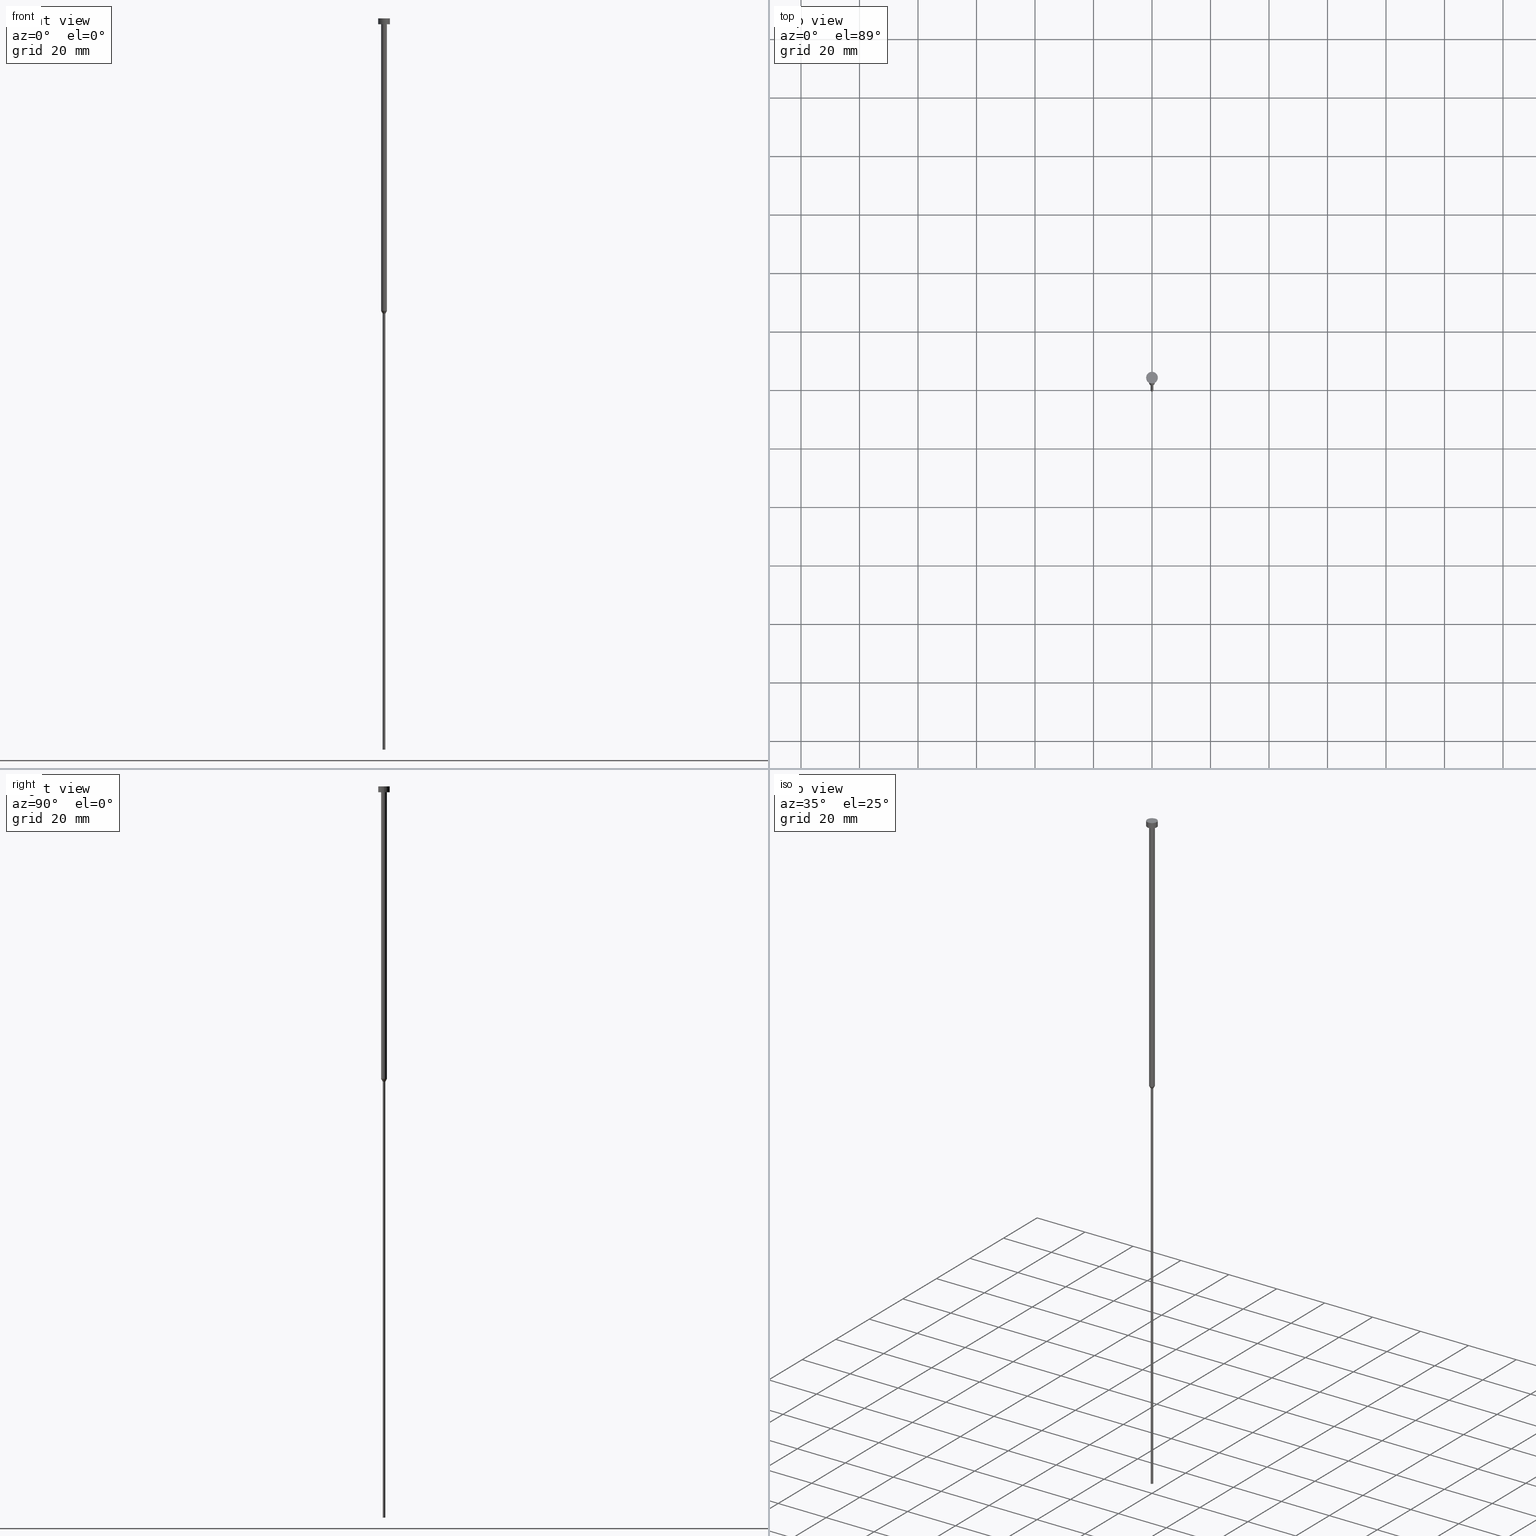
[diagram: canonical four-view strip — front | top / right | iso, engineering-drawing reading convention]
A machine part, canonical four-view strip (front | top / right | iso — engineering-drawing reading convention). The complete STEP part file that produces these views, byte-faithful:
ISO-10303-21;
HEADER;
FILE_DESCRIPTION (( 'STEP AP203' ),
    '1' );
FILE_NAME ('e36c.STEP',
    '2023-02-13T10:58:36',
    ( '' ),
    ( '' ),
    'SwSTEP 2.0',
    'SolidWorks 2019',
    '' );
FILE_SCHEMA (( 'CONFIG_CONTROL_DESIGN' ));
ENDSEC;

DATA;
#1 = SECURITY_CLASSIFICATION_LEVEL ( 'unclassified' ) ;
#2 = EDGE_CURVE ( 'NONE', #333, #186, #224, .T. ) ;
#3 = DIRECTION ( 'NONE',  ( -0.000000000000000000, -0.000000000000000000, 1.000000000000000000 ) ) ;
#4 = CC_DESIGN_APPROVAL ( #332, ( #63 ) ) ;
#5 = FACE_OUTER_BOUND ( 'NONE', #132, .T. ) ;
#6 = CARTESIAN_POINT ( 'NONE',  ( 0.000000000000000000, 0.000000000000000000, -100.0000000000000000 ) ) ;
#7 = UNCERTAINTY_MEASURE_WITH_UNIT (LENGTH_MEASURE( 1.000000000000000082E-05 ), #19, 'distance_accuracy_value', 'NONE');
#8 = CARTESIAN_POINT ( 'NONE',  ( 0.000000000000000000, 0.000000000000000000, 0.000000000000000000 ) ) ;
#9 = EDGE_CURVE ( 'NONE', #50, #158, #192, .T. ) ;
#10 = COORDINATED_UNIVERSAL_TIME_OFFSET ( 1, 0, .AHEAD. ) ;
#11 = AXIS2_PLACEMENT_3D ( 'NONE', #71, #307, #289 ) ;
#12 = CIRCLE ( 'NONE', #309, 1.000000000000003109 ) ;
#13 = FACE_OUTER_BOUND ( 'NONE', #274, .T. ) ;
#14 = DIRECTION ( 'NONE',  ( 1.000000000000000000, 0.000000000000000000, 0.000000000000000000 ) ) ;
#15 = ADVANCED_FACE ( 'NONE', ( #87 ), #168, .T. ) ;
#16 = CARTESIAN_POINT ( 'NONE',  ( 2.000000000000000000, 0.000000000000000000, 0.000000000000000000 ) ) ;
#17 = CARTESIAN_POINT ( 'NONE',  ( -1.000000000000003553, 1.224646799147357398E-16, -2.000000000000000444 ) ) ;
#18 = MANIFOLD_SOLID_BREP ( 'Rotovat1', #217 ) ;
#19 =( LENGTH_UNIT ( ) NAMED_UNIT ( * ) SI_UNIT ( .MILLI., .METRE. ) );
#20 = DATE_AND_TIME ( #96, #198 ) ;
#21 = CC_DESIGN_SECURITY_CLASSIFICATION ( #63, ( #26 ) ) ;
#22 = DIRECTION ( 'NONE',  ( 1.000000000000000000, 0.000000000000000000, 0.000000000000000000 ) ) ;
#23 = EDGE_LOOP ( 'NONE', ( #325, #211 ) ) ;
#24 = APPROVAL_STATUS ( 'not_yet_approved' ) ;
#25 = ORIENTED_EDGE ( 'NONE', *, *, #9, .F. ) ;
#26 = PRODUCT_DEFINITION_FORMATION_WITH_SPECIFIED_SOURCE ( 'LIBOVOLN�', '', #280, .NOT_KNOWN. ) ;
#27 = ORIENTED_EDGE ( 'NONE', *, *, #129, .F. ) ;
#28 = DIRECTION ( 'NONE',  ( 1.000000000000000000, 0.000000000000000000, 0.000000000000000000 ) ) ;
#29 = EDGE_LOOP ( 'NONE', ( #184, #131, #276, #79 ) ) ;
#30 = FACE_BOUND ( 'NONE', #326, .T. ) ;
#31 = PERSON_AND_ORGANIZATION ( #77, #322 ) ;
#32 = EDGE_CURVE ( 'NONE', #158, #83, #282, .T. ) ;
#33 = PLANE ( 'NONE',  #267 ) ;
#34 = CIRCLE ( 'NONE', #195, 2.000000000000000000 ) ;
#35 = CARTESIAN_POINT ( 'NONE',  ( 0.000000000000000000, 0.000000000000000000, -2.000000000000000444 ) ) ;
#36 = APPROVAL_PERSON_ORGANIZATION ( #236, #191, #240 ) ;
#37 = VECTOR ( 'NONE', #122, 1000.000000000000000 ) ;
#38 = FACE_OUTER_BOUND ( 'NONE', #78, .T. ) ;
#39 = CARTESIAN_POINT ( 'NONE',  ( 0.000000000000000000, 0.000000000000000000, 0.000000000000000000 ) ) ;
#40 = EDGE_CURVE ( 'NONE', #128, #186, #60, .T. ) ;
#41 = DIRECTION ( 'NONE',  ( -0.000000000000000000, -0.000000000000000000, 1.000000000000000000 ) ) ;
#42 = FACE_OUTER_BOUND ( 'NONE', #23, .T. ) ;
#43 = DIRECTION ( 'NONE',  ( 0.5000000000000067724, 0.000000000000000000, 0.8660254037844345998 ) ) ;
#44 = DATE_AND_TIME ( #285, #291 ) ;
#45 = CC_DESIGN_DATE_AND_TIME_ASSIGNMENT ( #155, #272, ( #63 ) ) ;
#46 = DIRECTION ( 'NONE',  ( 0.000000000000000000, 0.000000000000000000, -1.000000000000000000 ) ) ;
#47 =( NAMED_UNIT ( * ) PLANE_ANGLE_UNIT ( ) SI_UNIT ( $, .RADIAN. ) );
#48 = DESIGN_CONTEXT ( 'detailed design', #277, 'design' ) ;
#49 =( NAMED_UNIT ( * ) SI_UNIT ( $, .STERADIAN. ) SOLID_ANGLE_UNIT ( ) );
#50 = VERTEX_POINT ( 'NONE', #136 ) ;
#51 = ORIENTED_EDGE ( 'NONE', *, *, #9, .T. ) ;
#52 = DIRECTION ( 'NONE',  ( -0.000000000000000000, -0.000000000000000000, 1.000000000000000000 ) ) ;
#53 = PERSON_AND_ORGANIZATION_ROLE ( 'classification_officer' ) ;
#54 = DIRECTION ( 'NONE',  ( 0.000000000000000000, 0.000000000000000000, -1.000000000000000000 ) ) ;
#55 = VECTOR ( 'NONE', #137, 1000.000000000000000 ) ;
#56 = VERTEX_POINT ( 'NONE', #254 ) ;
#57 = CARTESIAN_POINT ( 'NONE',  ( 0.000000000000000000, 0.000000000000000000, -250.0000000000000000 ) ) ;
#58 = EDGE_CURVE ( 'NONE', #186, #128, #108, .T. ) ;
#59 = EDGE_LOOP ( 'NONE', ( #215, #126, #156, #251 ) ) ;
#60 = CIRCLE ( 'NONE', #185, 0.4500000000000000111 ) ;
#61 = DIRECTION ( 'NONE',  ( -0.000000000000000000, -0.000000000000000000, 1.000000000000000000 ) ) ;
#62 = CARTESIAN_POINT ( 'NONE',  ( -2.000000000000000000, 2.449293598294706414E-16, 0.000000000000000000 ) ) ;
#63 = SECURITY_CLASSIFICATION ( '', '', #1 ) ;
#64 = COORDINATED_UNIVERSAL_TIME_OFFSET ( 1, 0, .AHEAD. ) ;
#65 = AXIS2_PLACEMENT_3D ( 'NONE', #281, #69, #261 ) ;
#66 = AXIS2_PLACEMENT_3D ( 'NONE', #161, #350, #28 ) ;
#67 = EDGE_CURVE ( 'NONE', #186, #174, #341, .T. ) ;
#68 = DIRECTION ( 'NONE',  ( 1.000000000000000000, 0.000000000000000000, 0.000000000000000000 ) ) ;
#69 = DIRECTION ( 'NONE',  ( -0.000000000000000000, -0.000000000000000000, 1.000000000000000000 ) ) ;
#70 = ORIENTED_EDGE ( 'NONE', *, *, #189, .T. ) ;
#71 = CARTESIAN_POINT ( 'NONE',  ( 0.000000000000000000, 0.000000000000000000, 0.000000000000000000 ) ) ;
#72 = FACE_OUTER_BOUND ( 'NONE', #208, .T. ) ;
#73 = APPROVAL_PERSON_ORGANIZATION ( #75, #332, #100 ) ;
#74 = DIRECTION ( 'NONE',  ( -0.000000000000000000, -0.000000000000000000, 1.000000000000000000 ) ) ;
#75 = PERSON_AND_ORGANIZATION ( #77, #322 ) ;
#76 = DIRECTION ( 'NONE',  ( 1.000000000000000000, 0.000000000000000000, 0.000000000000000000 ) ) ;
#77 = PERSON ( 'NEUR�EN�', 'NEUR�EN�', 'NEUR�EN�', ('NEUR�EN�'), ('NEUR�EN�'), ('NEUR�EN�') ) ;
#78 = EDGE_LOOP ( 'NONE', ( #271, #246, #209, #25 ) ) ;
#79 = ORIENTED_EDGE ( 'NONE', *, *, #189, .F. ) ;
#80 = ORIENTED_EDGE ( 'NONE', *, *, #129, .T. ) ;
#81 = ADVANCED_FACE ( 'NONE', ( #199 ), #175, .T. ) ;
#82 = AXIS2_PLACEMENT_3D ( 'NONE', #308, #95, #203 ) ;
#83 = VERTEX_POINT ( 'NONE', #17 ) ;
#84 = CARTESIAN_POINT ( 'NONE',  ( 0.000000000000000000, 0.000000000000000000, -100.9526279441628702 ) ) ;
#85 = AXIS2_PLACEMENT_3D ( 'NONE', #113, #231, #336 ) ;
#86 = DIRECTION ( 'NONE',  ( -0.000000000000000000, -0.000000000000000000, 1.000000000000000000 ) ) ;
#87 = FACE_OUTER_BOUND ( 'NONE', #302, .T. ) ;
#88 = CARTESIAN_POINT ( 'NONE',  ( 2.000000000000000000, 0.000000000000000000, -2.000000000000000444 ) ) ;
#89 = DIRECTION ( 'NONE',  ( 1.000000000000000000, 0.000000000000000000, 0.000000000000000000 ) ) ;
#90 = CALENDAR_DATE ( 2023, 13, 2 ) ;
#91 = VECTOR ( 'NONE', #206, 1000.000000000000114 ) ;
#92 = APPROVAL_PERSON_ORGANIZATION ( #202, #354, #227 ) ;
#93 = FACE_OUTER_BOUND ( 'NONE', #328, .T. ) ;
#94 = PLANE ( 'NONE',  #147 ) ;
#95 = DIRECTION ( 'NONE',  ( -0.000000000000000000, -0.000000000000000000, 1.000000000000000000 ) ) ;
#96 = CALENDAR_DATE ( 2023, 13, 2 ) ;
#97 = EDGE_CURVE ( 'NONE', #233, #128, #173, .T. ) ;
#98 = ORIENTED_EDGE ( 'NONE', *, *, #67, .F. ) ;
#99 = ORIENTED_EDGE ( 'NONE', *, *, #97, .T. ) ;
#100 = APPROVAL_ROLE ( '' ) ;
#101 = ORIENTED_EDGE ( 'NONE', *, *, #58, .F. ) ;
#102 = EDGE_CURVE ( 'NONE', #56, #219, #34, .T. ) ;
#103 = ORIENTED_EDGE ( 'NONE', *, *, #97, .F. ) ;
#104 = LINE ( 'NONE', #62, #355 ) ;
#105 = CIRCLE ( 'NONE', #335, 2.000000000000000000 ) ;
#106 = VECTOR ( 'NONE', #118, 1000.000000000000000 ) ;
#107 = ADVANCED_FACE ( 'NONE', ( #150 ), #260, .T. ) ;
#108 = CIRCLE ( 'NONE', #65, 0.4500000000000000111 ) ;
#109 = AXIS2_PLACEMENT_3D ( 'NONE', #238, #146, #111 ) ;
#110 = CC_DESIGN_PERSON_AND_ORGANIZATION_ASSIGNMENT ( #278, #221, ( #26 ) ) ;
#111 = DIRECTION ( 'NONE',  ( 1.000000000000000000, 0.000000000000000000, 0.000000000000000000 ) ) ;
#112 = CYLINDRICAL_SURFACE ( 'NONE', #232, 1.000000000000003331 ) ;
#113 = CARTESIAN_POINT ( 'NONE',  ( 0.000000000000000000, 0.000000000000000000, 0.000000000000000000 ) ) ;
#114 = CARTESIAN_POINT ( 'NONE',  ( 0.000000000000000000, 0.000000000000000000, 0.000000000000000000 ) ) ;
#115 = APPROVAL_DATE_TIME ( #266, #354 ) ;
#116 = CYLINDRICAL_SURFACE ( 'NONE', #317, 0.4500000000000000111 ) ;
#117 = ORIENTED_EDGE ( 'NONE', *, *, #314, .T. ) ;
#118 = DIRECTION ( 'NONE',  ( -0.000000000000000000, -0.000000000000000000, 1.000000000000000000 ) ) ;
#119 = DIRECTION ( 'NONE',  ( -0.000000000000000000, -0.000000000000000000, 1.000000000000000000 ) ) ;
#120 = COORDINATED_UNIVERSAL_TIME_OFFSET ( 1, 0, .AHEAD. ) ;
#121 = AXIS2_PLACEMENT_3D ( 'NONE', #196, #134, #252 ) ;
#122 = DIRECTION ( 'NONE',  ( -0.000000000000000000, -0.000000000000000000, 1.000000000000000000 ) ) ;
#123 = AXIS2_PLACEMENT_3D ( 'NONE', #6, #52, #188 ) ;
#124 = EDGE_CURVE ( 'NONE', #233, #333, #320, .T. ) ;
#125 = ORIENTED_EDGE ( 'NONE', *, *, #58, .T. ) ;
#126 = ORIENTED_EDGE ( 'NONE', *, *, #338, .T. ) ;
#127 = CARTESIAN_POINT ( 'NONE',  ( 0.000000000000000000, 0.000000000000000000, -2.449293598294705921E-16 ) ) ;
#128 = VERTEX_POINT ( 'NONE', #157 ) ;
#129 = EDGE_CURVE ( 'NONE', #333, #233, #220, .T. ) ;
#130 = COORDINATED_UNIVERSAL_TIME_OFFSET ( 1, 0, .AHEAD. ) ;
#131 = ORIENTED_EDGE ( 'NONE', *, *, #67, .T. ) ;
#132 = EDGE_LOOP ( 'NONE', ( #222, #321, #51, #187 ) ) ;
#133 = PERSON_AND_ORGANIZATION_ROLE ( 'creator' ) ;
#134 = DIRECTION ( 'NONE',  ( -0.000000000000000000, -0.000000000000000000, 1.000000000000000000 ) ) ;
#135 = DIRECTION ( 'NONE',  ( 1.000000000000000000, 0.000000000000000000, 0.000000000000000000 ) ) ;
#136 = CARTESIAN_POINT ( 'NONE',  ( 1.000000000000003109, 0.000000000000000000, -100.0000000000000000 ) ) ;
#137 = DIRECTION ( 'NONE',  ( -0.000000000000000000, -0.000000000000000000, 1.000000000000000000 ) ) ;
#138 = PRODUCT_DEFINITION_SHAPE ( 'NONE', 'NONE',  #294 ) ;
#139 = CYLINDRICAL_SURFACE ( 'NONE', #243, 1.000000000000003331 ) ;
#140 = CIRCLE ( 'NONE', #109, 1.000000000000003553 ) ;
#141 = DIRECTION ( 'NONE',  ( -0.000000000000000000, -0.000000000000000000, 1.000000000000000000 ) ) ;
#142 = PERSON_AND_ORGANIZATION ( #77, #322 ) ;
#143 = APPLICATION_PROTOCOL_DEFINITION ( 'international standard', 'config_control_design', 1994, #277 ) ;
#144 = CARTESIAN_POINT ( 'NONE',  ( -1.000000000000003331, 1.224646799147357151E-16, 0.000000000000000000 ) ) ;
#145 = APPLICATION_PROTOCOL_DEFINITION ( 'international standard', 'config_control_design', 1994, #235 ) ;
#146 = DIRECTION ( 'NONE',  ( -0.000000000000000000, -0.000000000000000000, 1.000000000000000000 ) ) ;
#147 = AXIS2_PLACEMENT_3D ( 'NONE', #263, #259, #265 ) ;
#148 = DATE_TIME_ROLE ( 'creation_date' ) ;
#149 = DIRECTION ( 'NONE',  ( 1.000000000000000000, 0.000000000000000000, 0.000000000000000000 ) ) ;
#150 = FACE_OUTER_BOUND ( 'NONE', #29, .T. ) ;
#151 = CALENDAR_DATE ( 2023, 13, 2 ) ;
#152 = DIRECTION ( 'NONE',  ( -0.000000000000000000, -0.000000000000000000, 1.000000000000000000 ) ) ;
#153 = LOCAL_TIME ( 11, 58, 36.00000000000000000, #275 ) ;
#154 = ORIENTED_EDGE ( 'NONE', *, *, #228, .F. ) ;
#155 = DATE_AND_TIME ( #151, #153 ) ;
#156 = ORIENTED_EDGE ( 'NONE', *, *, #172, .F. ) ;
#157 = CARTESIAN_POINT ( 'NONE',  ( 0.4500000000000000111, 0.000000000000000000, -100.9526279441628702 ) ) ;
#158 = VERTEX_POINT ( 'NONE', #212 ) ;
#159 = CIRCLE ( 'NONE', #82, 1.000000000000003109 ) ;
#160 = ORIENTED_EDGE ( 'NONE', *, *, #205, .T. ) ;
#161 = CARTESIAN_POINT ( 'NONE',  ( 0.000000000000000000, 0.000000000000000000, -250.0000000000000000 ) ) ;
#162 = APPROVAL_DATE_TIME ( #213, #191 ) ;
#163 = CC_DESIGN_DATE_AND_TIME_ASSIGNMENT ( #44, #148, ( #294 ) ) ;
#164 = DIRECTION ( 'NONE',  ( 1.000000000000000000, 0.000000000000000000, 0.000000000000000000 ) ) ;
#165 = CIRCLE ( 'NONE', #273, 2.000000000000000000 ) ;
#166 = ADVANCED_FACE ( 'NONE', ( #30, #42 ), #33, .T. ) ;
#167 = CARTESIAN_POINT ( 'NONE',  ( 1.000000000000003109, 0.000000000000000000, -100.0000000000000000 ) ) ;
#168 = CYLINDRICAL_SURFACE ( 'NONE', #296, 2.000000000000000000 ) ;
#169 = AXIS2_PLACEMENT_3D ( 'NONE', #57, #348, #182 ) ;
#170 = CC_DESIGN_APPROVAL ( #191, ( #26 ) ) ;
#171 = LINE ( 'NONE', #144, #106 ) ;
#172 = EDGE_CURVE ( 'NONE', #292, #323, #105, .T. ) ;
#173 = LINE ( 'NONE', #283, #37 ) ;
#174 = VERTEX_POINT ( 'NONE', #193 ) ;
#175 = CYLINDRICAL_SURFACE ( 'NONE', #353, 0.4500000000000000111 ) ;
#176 = AXIS2_PLACEMENT_3D ( 'NONE', #35, #305, #135 ) ;
#177 = APPROVAL_DATE_TIME ( #20, #332 ) ;
#178 = CARTESIAN_POINT ( 'NONE',  ( 2.000000000000000000, 0.000000000000000000, -2.449293598294705921E-16 ) ) ;
#179 = EDGE_CURVE ( 'NONE', #219, #56, #248, .T. ) ;
#180 = ORIENTED_EDGE ( 'NONE', *, *, #40, .F. ) ;
#181 = AXIS2_PLACEMENT_3D ( 'NONE', #298, #54, #351 ) ;
#182 = DIRECTION ( 'NONE',  ( 1.000000000000000000, 0.000000000000000000, 0.000000000000000000 ) ) ;
#183 = PRODUCT_RELATED_PRODUCT_CATEGORY ( 'detail', '', ( #280 ) ) ;
#184 = ORIENTED_EDGE ( 'NONE', *, *, #40, .T. ) ;
#185 = AXIS2_PLACEMENT_3D ( 'NONE', #84, #61, #164 ) ;
#186 = VERTEX_POINT ( 'NONE', #253 ) ;
#187 = ORIENTED_EDGE ( 'NONE', *, *, #205, .F. ) ;
#188 = DIRECTION ( 'NONE',  ( 1.000000000000000000, 0.000000000000000000, 0.000000000000000000 ) ) ;
#189 = EDGE_CURVE ( 'NONE', #128, #50, #303, .T. ) ;
#190 = CARTESIAN_POINT ( 'NONE',  ( -0.4500000000000000111, 5.510910596163088939E-17, -250.0000000000000000 ) ) ;
#191 = APPROVAL ( #264, 'NEUR�EN�' ) ;
#192 = LINE ( 'NONE', #256, #334 ) ;
#193 = CARTESIAN_POINT ( 'NONE',  ( -1.000000000000003109, 1.224646799147356905E-16, -100.0000000000000000 ) ) ;
#194 = CARTESIAN_POINT ( 'NONE',  ( 0.000000000000000000, 0.000000000000000000, -100.0000000000000000 ) ) ;
#195 = AXIS2_PLACEMENT_3D ( 'NONE', #239, #242, #229 ) ;
#196 = CARTESIAN_POINT ( 'NONE',  ( 0.000000000000000000, 0.000000000000000000, -2.000000000000000444 ) ) ;
#197 = CARTESIAN_POINT ( 'NONE',  ( 0.000000000000000000, 0.000000000000000000, 0.000000000000000000 ) ) ;
#198 = LOCAL_TIME ( 11, 58, 36.00000000000000000, #130 ) ;
#199 = FACE_OUTER_BOUND ( 'NONE', #284, .T. ) ;
#200 = CC_DESIGN_PERSON_AND_ORGANIZATION_ASSIGNMENT ( #297, #53, ( #63 ) ) ;
#201 = CARTESIAN_POINT ( 'NONE',  ( 0.000000000000000000, 0.000000000000000000, -100.0000000000000000 ) ) ;
#202 = PERSON_AND_ORGANIZATION ( #77, #322 ) ;
#203 = DIRECTION ( 'NONE',  ( 1.000000000000000000, 0.000000000000000000, 0.000000000000000000 ) ) ;
#204 = FACE_OUTER_BOUND ( 'NONE', #59, .T. ) ;
#205 = EDGE_CURVE ( 'NONE', #83, #158, #140, .T. ) ;
#206 = DIRECTION ( 'NONE',  ( -0.5000000000000067724, 6.123233995736848620E-17, 0.8660254037844345998 ) ) ;
#207 = DIRECTION ( 'NONE',  ( 1.000000000000000000, 0.000000000000000000, 0.000000000000000000 ) ) ;
#208 = EDGE_LOOP ( 'NONE', ( #268, #117 ) ) ;
#209 = ORIENTED_EDGE ( 'NONE', *, *, #32, .F. ) ;
#210 = ADVANCED_FACE ( 'NONE', ( #5 ), #112, .T. ) ;
#211 = ORIENTED_EDGE ( 'NONE', *, *, #102, .F. ) ;
#212 = CARTESIAN_POINT ( 'NONE',  ( 1.000000000000003553, 0.000000000000000000, -2.000000000000000444 ) ) ;
#213 = DATE_AND_TIME ( #90, #226 ) ;
#214 = DIRECTION ( 'NONE',  ( -0.000000000000000000, -0.000000000000000000, 1.000000000000000000 ) ) ;
#215 = ORIENTED_EDGE ( 'NONE', *, *, #179, .T. ) ;
#216 = FACE_OUTER_BOUND ( 'NONE', #293, .T. ) ;
#217 = CLOSED_SHELL ( 'NONE', ( #288, #306, #107, #225, #324, #81, #290, #210, #166, #15, #218 ) ) ;
#218 = ADVANCED_FACE ( 'NONE', ( #72 ), #94, .T. ) ;
#219 = VERTEX_POINT ( 'NONE', #88 ) ;
#220 = CIRCLE ( 'NONE', #66, 0.4500000000000000111 ) ;
#221 = PERSON_AND_ORGANIZATION_ROLE ( 'design_supplier' ) ;
#222 = ORIENTED_EDGE ( 'NONE', *, *, #250, .F. ) ;
#223 = DIRECTION ( 'NONE',  ( -0.000000000000000000, -0.000000000000000000, 1.000000000000000000 ) ) ;
#224 = LINE ( 'NONE', #329, #247 ) ;
#225 = ADVANCED_FACE ( 'NONE', ( #13 ), #116, .T. ) ;
#226 = LOCAL_TIME ( 11, 58, 36.00000000000000000, #64 ) ;
#227 = APPROVAL_ROLE ( '' ) ;
#228 = EDGE_CURVE ( 'NONE', #174, #50, #12, .T. ) ;
#229 = DIRECTION ( 'NONE',  ( 1.000000000000000000, 0.000000000000000000, 0.000000000000000000 ) ) ;
#230 = MECHANICAL_CONTEXT ( 'NONE', #235, 'mechanical' ) ;
#231 = DIRECTION ( 'NONE',  ( -0.000000000000000000, -0.000000000000000000, 1.000000000000000000 ) ) ;
#232 = AXIS2_PLACEMENT_3D ( 'NONE', #8, #340, #149 ) ;
#233 = VERTEX_POINT ( 'NONE', #311 ) ;
#234 = PERSON_AND_ORGANIZATION ( #77, #322 ) ;
#235 = APPLICATION_CONTEXT ( 'configuration controlled 3d designs of mechanical parts and assemblies' ) ;
#236 = PERSON_AND_ORGANIZATION ( #77, #322 ) ;
#237 = CC_DESIGN_PERSON_AND_ORGANIZATION_ASSIGNMENT ( #31, #133, ( #26 ) ) ;
#238 = CARTESIAN_POINT ( 'NONE',  ( 0.000000000000000000, 0.000000000000000000, -2.000000000000000444 ) ) ;
#239 = CARTESIAN_POINT ( 'NONE',  ( 0.000000000000000000, 0.000000000000000000, -2.000000000000000444 ) ) ;
#240 = APPROVAL_ROLE ( '' ) ;
#241 = DIRECTION ( 'NONE',  ( -0.000000000000000000, -0.000000000000000000, 1.000000000000000000 ) ) ;
#242 = DIRECTION ( 'NONE',  ( -0.000000000000000000, -0.000000000000000000, 1.000000000000000000 ) ) ;
#243 = AXIS2_PLACEMENT_3D ( 'NONE', #245, #241, #76 ) ;
#244 = SHAPE_DEFINITION_REPRESENTATION ( #138, #286 ) ;
#245 = CARTESIAN_POINT ( 'NONE',  ( 0.000000000000000000, 0.000000000000000000, 0.000000000000000000 ) ) ;
#246 = ORIENTED_EDGE ( 'NONE', *, *, #250, .T. ) ;
#247 = VECTOR ( 'NONE', #86, 1000.000000000000000 ) ;
#248 = CIRCLE ( 'NONE', #176, 2.000000000000000000 ) ;
#249 = ORIENTED_EDGE ( 'NONE', *, *, #102, .T. ) ;
#250 = EDGE_CURVE ( 'NONE', #174, #83, #171, .T. ) ;
#251 = ORIENTED_EDGE ( 'NONE', *, *, #319, .F. ) ;
#252 = DIRECTION ( 'NONE',  ( 1.000000000000000000, 0.000000000000000000, 0.000000000000000000 ) ) ;
#253 = CARTESIAN_POINT ( 'NONE',  ( -0.4500000000000000111, 5.510910596163088939E-17, -100.9526279441628702 ) ) ;
#254 = CARTESIAN_POINT ( 'NONE',  ( -2.000000000000000000, 2.449293598294706414E-16, -2.000000000000000444 ) ) ;
#255 = PLANE ( 'NONE',  #181 ) ;
#256 = CARTESIAN_POINT ( 'NONE',  ( 1.000000000000003331, 0.000000000000000000, 0.000000000000000000 ) ) ;
#257 = PERSON_AND_ORGANIZATION_ROLE ( 'design_owner' ) ;
#258 = EDGE_CURVE ( 'NONE', #50, #174, #159, .T. ) ;
#259 = DIRECTION ( 'NONE',  ( 0.000000000000000000, -0.000000000000000000, 1.000000000000000000 ) ) ;
#260 = CONICAL_SURFACE ( 'NONE', #123, 1.000000000000003109, 0.5235987755983068093 ) ;
#261 = DIRECTION ( 'NONE',  ( 1.000000000000000000, 0.000000000000000000, 0.000000000000000000 ) ) ;
#262 = APPROVAL_STATUS ( 'not_yet_approved' ) ;
#263 = CARTESIAN_POINT ( 'NONE',  ( 0.000000000000000000, 0.000000000000000000, -1.224646799147352961E-16 ) ) ;
#264 = APPROVAL_STATUS ( 'not_yet_approved' ) ;
#265 = DIRECTION ( 'NONE',  ( 1.000000000000000000, 0.000000000000000000, 0.000000000000000000 ) ) ;
#266 = DATE_AND_TIME ( #313, #327 ) ;
#267 = AXIS2_PLACEMENT_3D ( 'NONE', #299, #46, #270 ) ;
#268 = ORIENTED_EDGE ( 'NONE', *, *, #172, .T. ) ;
#269 = CC_DESIGN_PERSON_AND_ORGANIZATION_ASSIGNMENT ( #234, #339, ( #294 ) ) ;
#270 = DIRECTION ( 'NONE',  ( -1.000000000000000000, 0.000000000000000000, -0.000000000000000000 ) ) ;
#271 = ORIENTED_EDGE ( 'NONE', *, *, #258, .T. ) ;
#272 = DATE_TIME_ROLE ( 'classification_date' ) ;
#273 = AXIS2_PLACEMENT_3D ( 'NONE', #344, #214, #207 ) ;
#274 = EDGE_LOOP ( 'NONE', ( #349, #345, #180, #103 ) ) ;
#275 = COORDINATED_UNIVERSAL_TIME_OFFSET ( 1, 0, .AHEAD. ) ;
#276 = ORIENTED_EDGE ( 'NONE', *, *, #258, .F. ) ;
#277 = APPLICATION_CONTEXT ( 'configuration controlled 3d designs of mechanical parts and assemblies' ) ;
#278 = PERSON_AND_ORGANIZATION ( #77, #322 ) ;
#279 = CARTESIAN_POINT ( 'NONE',  ( -2.000000000000000000, 2.449293598294706414E-16, -2.449293598294705921E-16 ) ) ;
#280 = PRODUCT ( 'e36c', 'e36c', '', ( #230 ) ) ;
#281 = CARTESIAN_POINT ( 'NONE',  ( 0.000000000000000000, 0.000000000000000000, -100.9526279441628702 ) ) ;
#282 = CIRCLE ( 'NONE', #121, 1.000000000000003553 ) ;
#283 = CARTESIAN_POINT ( 'NONE',  ( 0.4500000000000000111, 0.000000000000000000, 0.000000000000000000 ) ) ;
#284 = EDGE_LOOP ( 'NONE', ( #301, #80, #99, #101 ) ) ;
#285 = CALENDAR_DATE ( 2023, 13, 2 ) ;
#286 = ADVANCED_BREP_SHAPE_REPRESENTATION ( 'e36c', ( #18, #11 ), #343 ) ;
#287 = CONICAL_SURFACE ( 'NONE', #300, 1.000000000000003109, 0.5235987755983068093 ) ;
#288 = ADVANCED_FACE ( 'NONE', ( #204 ), #316, .T. ) ;
#289 = DIRECTION ( 'NONE',  ( 1.000000000000000000, 0.000000000000000000, 0.000000000000000000 ) ) ;
#290 = ADVANCED_FACE ( 'NONE', ( #93 ), #287, .T. ) ;
#291 = LOCAL_TIME ( 11, 58, 36.00000000000000000, #120 ) ;
#292 = VERTEX_POINT ( 'NONE', #178 ) ;
#293 = EDGE_LOOP ( 'NONE', ( #295, #27 ) ) ;
#294 = PRODUCT_DEFINITION ( 'NEZN�M�', '', #26, #48 ) ;
#295 = ORIENTED_EDGE ( 'NONE', *, *, #124, .F. ) ;
#296 = AXIS2_PLACEMENT_3D ( 'NONE', #39, #141, #89 ) ;
#297 = PERSON_AND_ORGANIZATION ( #77, #322 ) ;
#298 = CARTESIAN_POINT ( 'NONE',  ( 0.000000000000000000, 0.000000000000000000, -250.0000000000000000 ) ) ;
#299 = CARTESIAN_POINT ( 'NONE',  ( 0.000000000000000000, -2.000000000000000000, -2.000000000000000444 ) ) ;
#300 = AXIS2_PLACEMENT_3D ( 'NONE', #201, #74, #68 ) ;
#301 = ORIENTED_EDGE ( 'NONE', *, *, #2, .F. ) ;
#302 = EDGE_LOOP ( 'NONE', ( #312, #249, #347, #337 ) ) ;
#303 = LINE ( 'NONE', #167, #304 ) ;
#304 = VECTOR ( 'NONE', #43, 1000.000000000000114 ) ;
#305 = DIRECTION ( 'NONE',  ( -0.000000000000000000, -0.000000000000000000, 1.000000000000000000 ) ) ;
#306 = ADVANCED_FACE ( 'NONE', ( #38 ), #139, .T. ) ;
#307 = DIRECTION ( 'NONE',  ( 0.000000000000000000, 0.000000000000000000, 1.000000000000000000 ) ) ;
#308 = CARTESIAN_POINT ( 'NONE',  ( 0.000000000000000000, 0.000000000000000000, -100.0000000000000000 ) ) ;
#309 = AXIS2_PLACEMENT_3D ( 'NONE', #194, #342, #14 ) ;
#310 = DIRECTION ( 'NONE',  ( 1.000000000000000000, 0.000000000000000000, 0.000000000000000000 ) ) ;
#311 = CARTESIAN_POINT ( 'NONE',  ( 0.4500000000000000111, 0.000000000000000000, -250.0000000000000000 ) ) ;
#312 = ORIENTED_EDGE ( 'NONE', *, *, #338, .F. ) ;
#313 = CALENDAR_DATE ( 2023, 13, 2 ) ;
#314 = EDGE_CURVE ( 'NONE', #323, #292, #165, .T. ) ;
#315 = CARTESIAN_POINT ( 'NONE',  ( -1.000000000000003109, 1.224646799147356905E-16, -100.0000000000000000 ) ) ;
#316 = CYLINDRICAL_SURFACE ( 'NONE', #85, 2.000000000000000000 ) ;
#317 = AXIS2_PLACEMENT_3D ( 'NONE', #197, #41, #310 ) ;
#318 = DIRECTION ( 'NONE',  ( 1.000000000000000000, 0.000000000000000000, 0.000000000000000000 ) ) ;
#319 = EDGE_CURVE ( 'NONE', #219, #292, #346, .T. ) ;
#320 = CIRCLE ( 'NONE', #169, 0.4500000000000000111 ) ;
#321 = ORIENTED_EDGE ( 'NONE', *, *, #228, .T. ) ;
#322 = ORGANIZATION ( 'NEUR�EN�', 'NEUR�EN�', '' ) ;
#323 = VERTEX_POINT ( 'NONE', #279 ) ;
#324 = ADVANCED_FACE ( 'NONE', ( #216 ), #255, .T. ) ;
#325 = ORIENTED_EDGE ( 'NONE', *, *, #179, .F. ) ;
#326 = EDGE_LOOP ( 'NONE', ( #352, #160 ) ) ;
#327 = LOCAL_TIME ( 11, 58, 36.00000000000000000, #10 ) ;
#328 = EDGE_LOOP ( 'NONE', ( #98, #125, #70, #154 ) ) ;
#329 = CARTESIAN_POINT ( 'NONE',  ( -0.4500000000000000111, 5.510910596163088939E-17, 0.000000000000000000 ) ) ;
#330 = CC_DESIGN_PERSON_AND_ORGANIZATION_ASSIGNMENT ( #142, #257, ( #280 ) ) ;
#331 = CC_DESIGN_APPROVAL ( #354, ( #294 ) ) ;
#332 = APPROVAL ( #24, 'NEUR�EN�' ) ;
#333 = VERTEX_POINT ( 'NONE', #190 ) ;
#334 = VECTOR ( 'NONE', #3, 1000.000000000000000 ) ;
#335 = AXIS2_PLACEMENT_3D ( 'NONE', #127, #152, #22 ) ;
#336 = DIRECTION ( 'NONE',  ( 1.000000000000000000, 0.000000000000000000, 0.000000000000000000 ) ) ;
#337 = ORIENTED_EDGE ( 'NONE', *, *, #314, .F. ) ;
#338 = EDGE_CURVE ( 'NONE', #56, #323, #104, .T. ) ;
#339 = PERSON_AND_ORGANIZATION_ROLE ( 'creator' ) ;
#340 = DIRECTION ( 'NONE',  ( -0.000000000000000000, -0.000000000000000000, 1.000000000000000000 ) ) ;
#341 = LINE ( 'NONE', #315, #91 ) ;
#342 = DIRECTION ( 'NONE',  ( -0.000000000000000000, -0.000000000000000000, 1.000000000000000000 ) ) ;
#343 =( GEOMETRIC_REPRESENTATION_CONTEXT ( 3 ) GLOBAL_UNCERTAINTY_ASSIGNED_CONTEXT ( ( #7 ) ) GLOBAL_UNIT_ASSIGNED_CONTEXT ( ( #19, #47, #49 ) ) REPRESENTATION_CONTEXT ( 'NONE', 'WORKASPACE' ) );
#344 = CARTESIAN_POINT ( 'NONE',  ( 0.000000000000000000, 0.000000000000000000, -2.449293598294705921E-16 ) ) ;
#345 = ORIENTED_EDGE ( 'NONE', *, *, #2, .T. ) ;
#346 = LINE ( 'NONE', #16, #55 ) ;
#347 = ORIENTED_EDGE ( 'NONE', *, *, #319, .T. ) ;
#348 = DIRECTION ( 'NONE',  ( -0.000000000000000000, -0.000000000000000000, 1.000000000000000000 ) ) ;
#349 = ORIENTED_EDGE ( 'NONE', *, *, #124, .T. ) ;
#350 = DIRECTION ( 'NONE',  ( -0.000000000000000000, -0.000000000000000000, 1.000000000000000000 ) ) ;
#351 = DIRECTION ( 'NONE',  ( -1.000000000000000000, 0.000000000000000000, -0.000000000000000000 ) ) ;
#352 = ORIENTED_EDGE ( 'NONE', *, *, #32, .T. ) ;
#353 = AXIS2_PLACEMENT_3D ( 'NONE', #114, #119, #318 ) ;
#354 = APPROVAL ( #262, 'NEUR�EN�' ) ;
#355 = VECTOR ( 'NONE', #223, 1000.000000000000000 ) ;
ENDSEC;
END-ISO-10303-21;
